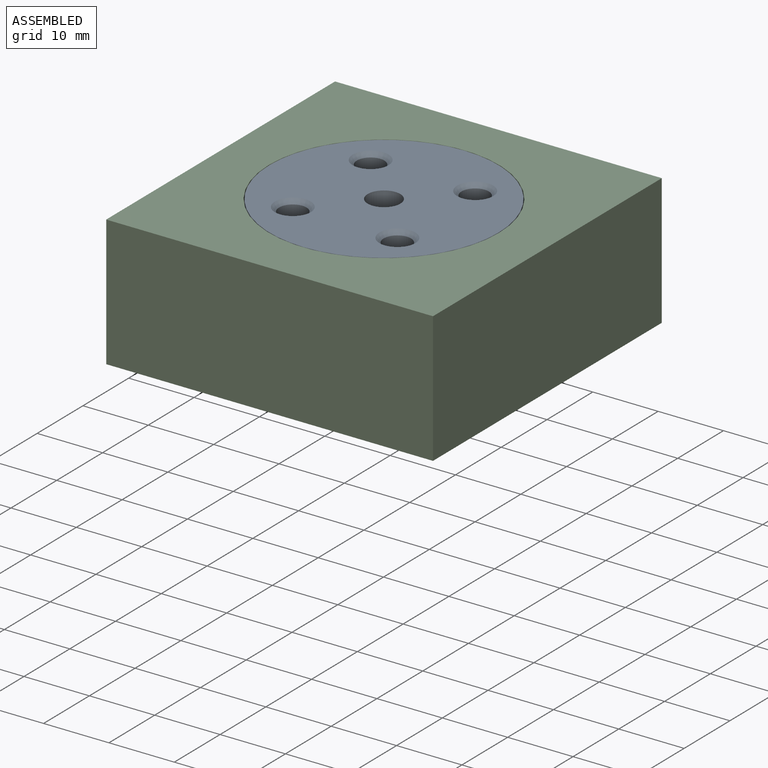
[diagram: assembled view]
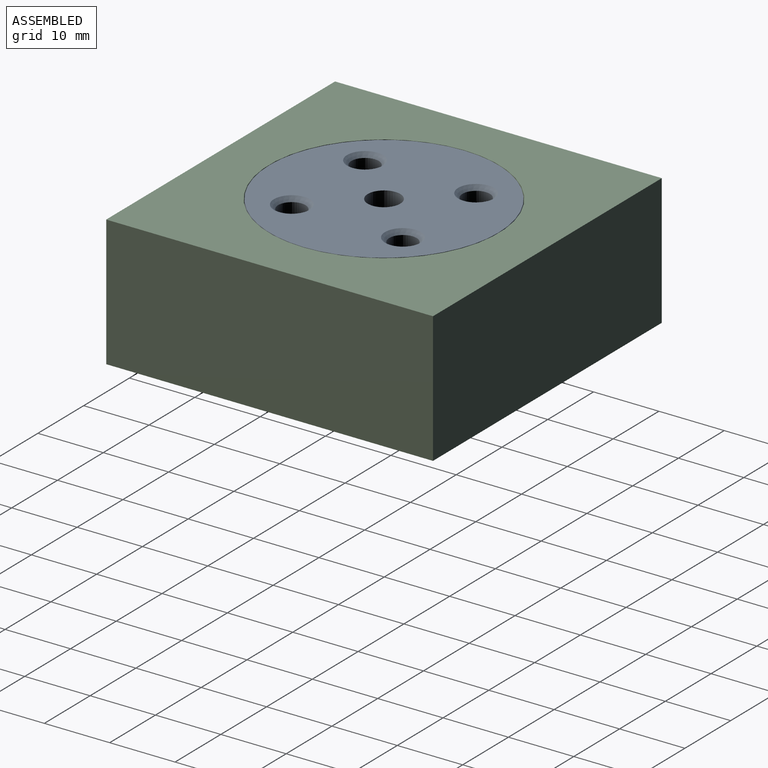
[diagram: assembled view, second angle]
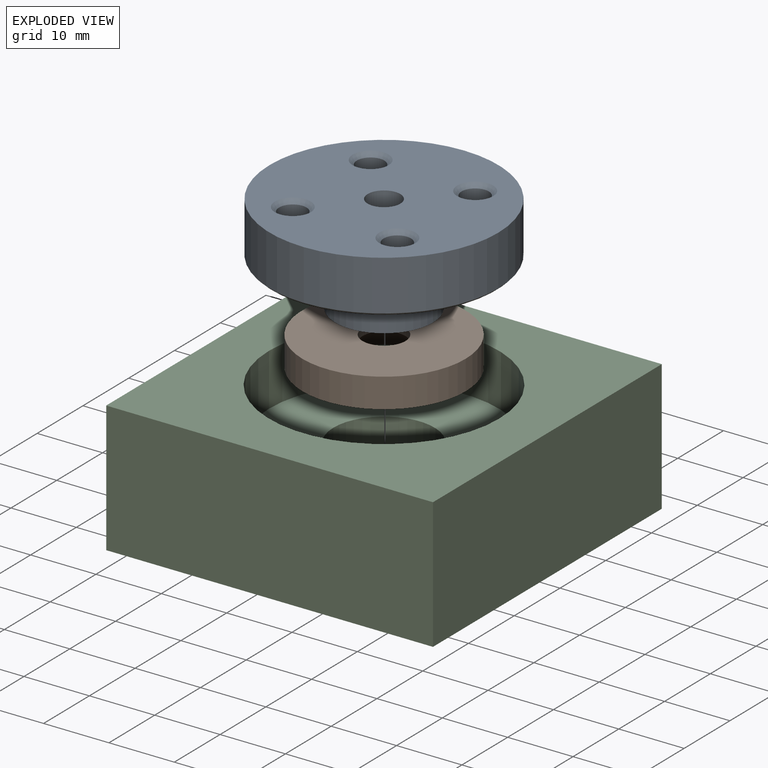
[diagram: exploded view]
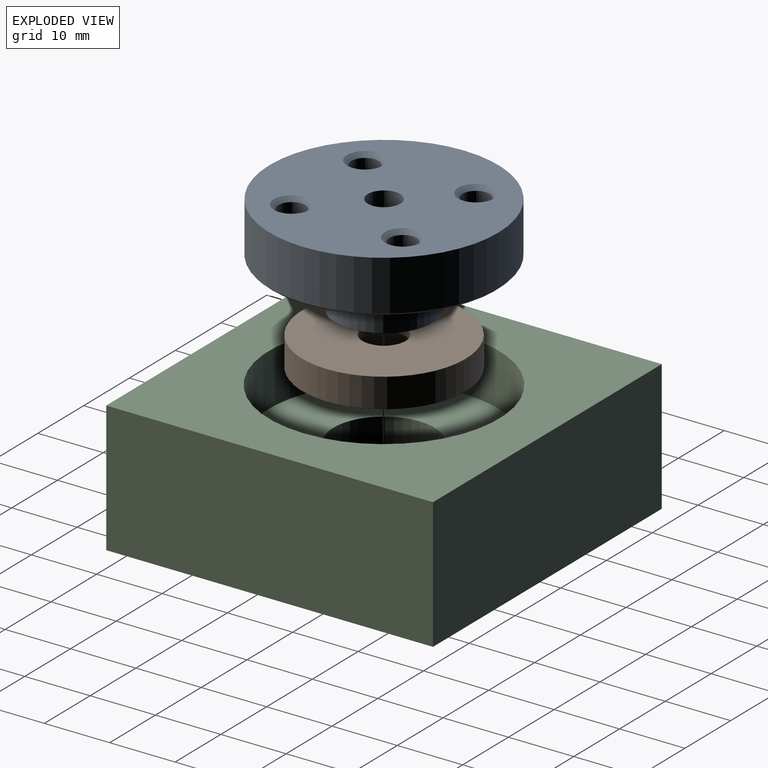
[diagram: exploded view, second angle]
ASSEMBLY  parts=3 mates=2
PART A: 18 faces, bbox 35x35x15.1 mm
  f0: plane 35x35mm, normal (0,0,1), area 847.4mm2, adj f6,f8,f10,f12,f14,f15
  f1: plane 15x15mm, normal (0,0,-1), area 143.5mm2, adj f2,f16
  f2: cylinder r=7.5mm len=15mm, axis (0,0,1), area 381.7mm2, adj f1,f3
  f3: plane 31x31mm, normal (0,0,-1), area 522.6mm2, adj f2,f4,f7,f9,f11,f13
  f4: cylinder r=15.5mm len=31mm, axis (0,0,1), area 97.4mm2, adj f3,f5
  f5: plane 34.4x34.4mm, normal (0,0,-1), area 174.6mm2, adj f4,f17
  f6: cylinder r=17.5mm len=35mm, axis (0,0,1), area 846.7mm2, adj f0,f17
  f7: cylinder r=2.1mm len=6.35mm, axis (0,0,1), area 83.8mm2, adj f3,f8
  f8: cone r=2.1mm half-angle=45deg, axis (0,0,1), area 14mm2, adj f0,f7
  f9: cylinder r=2.1mm len=6.35mm, axis (0,0,1), area 83.8mm2, adj f3,f10
  f10: cone r=2.1mm half-angle=45deg, axis (0,0,1), area 14mm2, adj f0,f9
  f11: cylinder r=2.1mm len=6.35mm, axis (0,0,1), area 83.8mm2, adj f3,f12
  f12: cone r=2.1mm half-angle=45deg, axis (0,0,1), area 14mm2, adj f0,f11
  f13: cylinder r=2.1mm len=6.35mm, axis (0,0,1), area 83.8mm2, adj f3,f14
  f14: cone r=2.1mm half-angle=45deg, axis (0,0,1), area 14mm2, adj f0,f13
  f15: cylinder r=2.5mm len=14.35mm, axis (0,0,-1), area 225.4mm2, adj f0,f16
  f16: cone r=2.5mm half-angle=45deg, axis (0,0,-1), area 19.2mm2, adj f1,f15
  f17: cone r=17.5mm half-angle=45deg, axis (0,0,1), area 46.3mm2, adj f5,f6
PART B: 5 faces, bbox 25x25x4.5 mm
  f0: cylinder r=12.5mm len=25mm, axis (0,0,-1), area 353.4mm2, adj f1,f2
  f1: plane 25x25mm, normal (0,0,1), area 349mm2, adj f0,f4
  f2: plane 25x25mm, normal (0,0,-1), area 456.7mm2, adj f0,f3
  f3: cylinder r=3.3mm len=6.6mm, axis (0,0,1), area 22.4mm2, adj f2,f4
  f4: cone r=3.3mm half-angle=45deg, axis (0,0,1), area 152.3mm2, adj f1,f3
PART C: 11 faces, bbox 50x50x20 mm
  f0: plane 50x50mm, normal (0,0,-1), area 2009.1mm2, adj f2,f3,f4,f5,f9
  f1: cylinder r=7.75mm len=15.5mm, axis (0,0,-1), area 340.9mm2, adj f8,f10
  f2: plane 50x20mm, normal (0,1,0), area 1000mm2, adj f0,f3,f5,f6
  f3: plane 50x20mm, normal (-1,0,0), area 1000mm2, adj f0,f2,f4,f6
  f4: plane 50x20mm, normal (0,-1,0), area 1000mm2, adj f0,f3,f5,f6
  f5: plane 50x20mm, normal (1,0,0), area 1000mm2, adj f0,f2,f4,f6
  f6: plane 50x50mm, normal (0,0,1), area 1526.9mm2, adj f2,f3,f4,f5,f7
  f7: cylinder r=17.6mm len=35.2mm, axis (0,0,1), area 884.7mm2, adj f6,f8
  f8: plane 35.2x35.2mm, normal (0,0,1), area 784.4mm2, adj f1,f7
  f9: cylinder r=12.5mm len=25mm, axis (0,0,-1), area 392.7mm2, adj f0,f10
  f10: plane 25x25mm, normal (0,0,-1), area 302.2mm2, adj f1,f9
PLACE A t=(0.07,0.01,-8.28)mm
PLACE B rot(axis=(1,0,0),180deg) t=(0.07,0.01,6.1)mm
PLACE C t=(0.07,0.01,1.2)mm
MATE planar A.f2 <-> C.f7  axis (0,0,-1) through (0.07,0.01,13.2)mm
MATE planar B.f0 <-> A.f2  axis (0,0,1) through (0.07,0.01,6.1)mm
